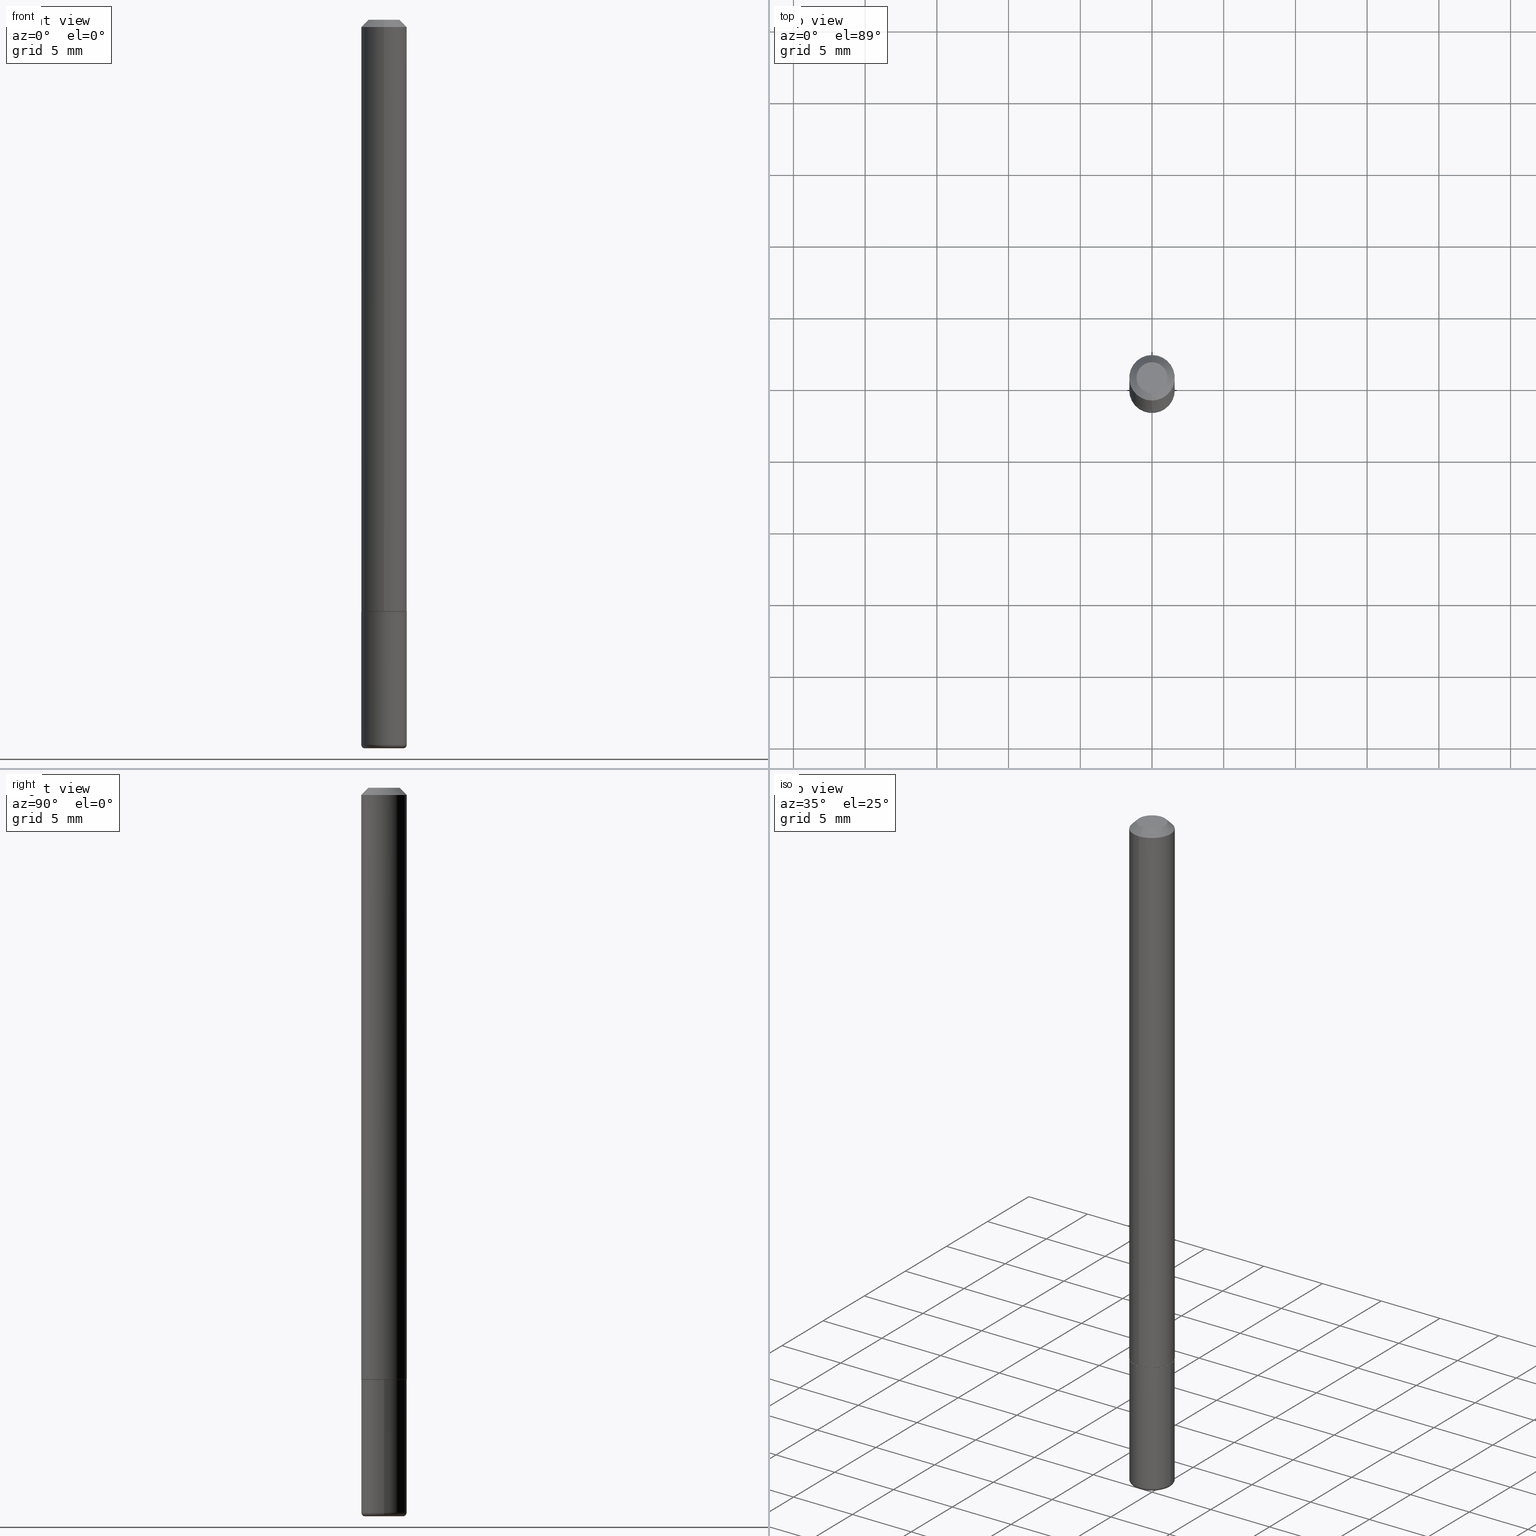
[diagram: canonical four-view strip — front | top / right | iso, engineering-drawing reading convention]
A machine part, canonical four-view strip (front | top / right | iso — engineering-drawing reading convention). The complete STEP part file that produces these views, byte-faithful:
ISO-10303-21;
HEADER;
FILE_DESCRIPTION (( 'STEP AP203' ),
    '1' );
FILE_NAME ('37987.STEP',
    '2024-03-02T10:37:51',
    ( '' ),
    ( '' ),
    'SwSTEP 2.0',
    'SolidWorks 2023',
    '' );
FILE_SCHEMA (( 'CONFIG_CONTROL_DESIGN' ));
ENDSEC;

DATA;
#1 = SECURITY_CLASSIFICATION ( '', '', #388 ) ;
#2 = DIRECTION ( 'NONE',  ( 2.455550444361550875E-29, -3.477043859163310348E-15, -1.000000000000000000 ) ) ;
#3 = VERTEX_POINT ( 'NONE', #5 ) ;
#4 = EDGE_CURVE ( 'NONE', #257, #189, #352, .T. ) ;
#5 = CARTESIAN_POINT ( 'NONE',  ( -3.601761448830047996E-16, -0.04249999999999988509, 2.538735833805575223E-16 ) ) ;
#6 = CARTESIAN_POINT ( 'NONE',  ( -4.364351673553526701E-16, -0.06250000000000577316, -1.623999999999999888 ) ) ;
#7 = EDGE_LOOP ( 'NONE', ( #129, #36, #215, #314 ) ) ;
#8 = ORIENTED_EDGE ( 'NONE', *, *, #83, .T. ) ;
#9 = DIRECTION ( 'NONE',  ( 1.000000000000000000, -6.982962677686261189E-15, 0.000000000000000000 ) ) ;
#10 = ORIENTED_EDGE ( 'NONE', *, *, #304, .T. ) ;
#11 = APPROVAL ( #185, 'UNSPECIFIED' ) ;
#12 = CARTESIAN_POINT ( 'NONE',  ( 4.866482924308422769E-29, -6.948047864297861094E-15, -1.990000000000000435 ) ) ;
#13 = DATE_TIME_ROLE ( 'classification_date' ) ;
#14 = CARTESIAN_POINT ( 'NONE',  ( 4.369837824925013962E-16, 0.06149999999999433697, -1.625000000000000666 ) ) ;
#15 = DIRECTION ( 'NONE',  ( 1.000000000000000000, -6.982962677686265133E-15, 0.000000000000000000 ) ) ;
#16 = AXIS2_PLACEMENT_3D ( 'NONE', #107, #331, #41 ) ;
#17 = ADVANCED_FACE ( 'NONE', ( #88 ), #62, .T. ) ;
#18 = APPROVAL_PERSON_ORGANIZATION ( #106, #131, #110 ) ;
#19 = PRODUCT_RELATED_PRODUCT_CATEGORY ( 'detail', '', ( #301 ) ) ;
#20 = DIRECTION ( 'NONE',  ( -2.445468806185136597E-29, 3.491481338843145583E-15, 1.000000000000000000 ) ) ;
#21 = COORDINATED_UNIVERSAL_TIME_OFFSET ( 5, 0, .BEHIND. ) ;
#22 = AXIS2_PLACEMENT_3D ( 'NONE', #176, #279, #282 ) ;
#23 = LOCAL_TIME ( 5, 37, 51.00000000000000000, #121 ) ;
#24 = DIRECTION ( 'NONE',  ( -2.455550444361550875E-29, 3.477043859163310348E-15, 1.000000000000000000 ) ) ;
#25 = PERSON_AND_ORGANIZATION ( #367, #398 ) ;
#26 = DIRECTION ( 'NONE',  ( -6.982962677686266711E-15, -1.000000000000000000, 3.477043859163311532E-15 ) ) ;
#27 = DATE_AND_TIME ( #340, #275 ) ;
#28 = DIRECTION ( 'NONE',  ( 2.438088387897960049E-29, -3.491481338843145188E-15, -1.000000000000000000 ) ) ;
#29 = EDGE_LOOP ( 'NONE', ( #255, #280, #92, #415 ) ) ;
#30 = CARTESIAN_POINT ( 'NONE',  ( -0.05250000000000001887, -6.575012928023808559E-15, -1.990000000000000435 ) ) ;
#31 = ORIENTED_EDGE ( 'NONE', *, *, #412, .F. ) ;
#32 = AXIS2_PLACEMENT_3D ( 'NONE', #75, #134, #111 ) ;
#33 = CARTESIAN_POINT ( 'NONE',  ( -0.06250000000000001388, -5.866763310108924432E-15, -1.625000000000000222 ) ) ;
#34 = ORIENTED_EDGE ( 'NONE', *, *, #144, .F. ) ;
#35 = FACE_OUTER_BOUND ( 'NONE', #98, .T. ) ;
#36 = ORIENTED_EDGE ( 'NONE', *, *, #364, .T. ) ;
#37 = APPROVAL ( #84, 'UNSPECIFIED' ) ;
#38 = DIRECTION ( 'NONE',  ( 1.000000000000000000, -6.982962677686266711E-15, 4.883557194083112901E-29 ) ) ;
#39 = CONICAL_SURFACE ( 'NONE', #269, 0.06250000000000001388, 0.7853981633974471688 ) ;
#40 = DIRECTION ( 'NONE',  ( 2.455550444361550875E-29, -3.477043859163310348E-15, -1.000000000000000000 ) ) ;
#41 = DIRECTION ( 'NONE',  ( 1.000000000000000000, -6.982962677686261189E-15, 0.000000000000000000 ) ) ;
#42 = ADVANCED_FACE ( 'NONE', ( #104 ), #371, .T. ) ;
#43 = ADVANCED_FACE ( 'NONE', ( #368 ), #76, .T. ) ;
#44 = AXIS2_PLACEMENT_3D ( 'NONE', #313, #28, #286 ) ;
#45 = ADVANCED_BREP_SHAPE_REPRESENTATION ( '37987', ( #372, #370, #374 ), #403 ) ;
#46 = CC_DESIGN_PERSON_AND_ORGANIZATION_ASSIGNMENT ( #312, #183, ( #240 ) ) ;
#47 = DIRECTION ( 'NONE',  ( -6.982962677686265922E-15, -1.000000000000000000, 3.483106191921934765E-15 ) ) ;
#48 =( LENGTH_UNIT ( ) NAMED_UNIT ( * ) SI_UNIT ( $, .METRE. ) );
#49 = CONICAL_SURFACE ( 'NONE', #284, 0.06149999999999998523, 0.7853981633974824739 ) ;
#50 = CARTESIAN_POINT ( 'NONE',  ( 0.000000000000000000, 0.000000000000000000, 0.000000000000000000 ) ) ;
#51 = CARTESIAN_POINT ( 'NONE',  ( 0.000000000000000000, 0.000000000000000000, 0.000000000000000000 ) ) ;
#52 = PERSON_AND_ORGANIZATION_ROLE ( 'design_owner' ) ;
#53 = DIRECTION ( 'NONE',  ( -6.982962677686266711E-15, -1.000000000000000000, 3.491481338843145583E-15 ) ) ;
#54 = CALENDAR_DATE ( 2024, 2, 3 ) ;
#55 = APPROVAL_PERSON_ORGANIZATION ( #57, #11, #409 ) ;
#56 = CARTESIAN_POINT ( 'NONE',  ( 0.06250000000000001388, -6.110092342975504671E-15, -1.625000000000000222 ) ) ;
#57 = PERSON_AND_ORGANIZATION ( #367, #398 ) ;
#58 = CYLINDRICAL_SURFACE ( 'NONE', #309, 0.06250000000000006939 ) ;
#59 = ORIENTED_EDGE ( 'NONE', *, *, #373, .F. ) ;
#60 = DIRECTION ( 'NONE',  ( -6.982962677686265922E-15, -1.000000000000000000, 4.442029257990672920E-15 ) ) ;
#61 = VERTEX_POINT ( 'NONE', #77 ) ;
#62 = CYLINDRICAL_SURFACE ( 'NONE', #126, 0.06250000000000001388 ) ;
#63 = AXIS2_PLACEMENT_3D ( 'NONE', #204, #335, #47 ) ;
#64 = LINE ( 'NONE', #69, #90 ) ;
#65 = EDGE_LOOP ( 'NONE', ( #283, #125, #193, #263 ) ) ;
#66 = AXIS2_PLACEMENT_3D ( 'NONE', #220, #288, #256 ) ;
#67 = CALENDAR_DATE ( 2024, 2, 3 ) ;
#68 = EDGE_CURVE ( 'NONE', #392, #189, #242, .T. ) ;
#69 = CARTESIAN_POINT ( 'NONE',  ( 0.06250000000000001388, -4.364351673553918173E-16, 3.047610484872460571E-30 ) ) ;
#70 = DIRECTION ( 'NONE',  ( -2.455550444361550875E-29, 3.477043859163310348E-15, 1.000000000000000000 ) ) ;
#71 = EDGE_CURVE ( 'NONE', #135, #102, #302, .T. ) ;
#72 = ORIENTED_EDGE ( 'NONE', *, *, #238, .F. ) ;
#73 = DIRECTION ( 'NONE',  ( -2.445468806185136597E-29, 3.491481338843145583E-15, 1.000000000000000000 ) ) ;
#74 = CC_DESIGN_APPROVAL ( #131, ( #1 ) ) ;
#75 = CARTESIAN_POINT ( 'NONE',  ( 3.990269472087521188E-29, -5.650196271140380549E-15, -1.625000000000000222 ) ) ;
#76 = PLANE ( 'NONE',  #137 ) ;
#77 = CARTESIAN_POINT ( 'NONE',  ( 0.06249999999999992367, -7.384483031653253552E-15, -1.990000000000000435 ) ) ;
#78 = APPROVAL_PERSON_ORGANIZATION ( #246, #37, #380 ) ;
#79 = EDGE_CURVE ( 'NONE', #135, #61, #404, .T. ) ;
#80 = VECTOR ( 'NONE', #120, 39.37007874015748143 ) ;
#81 = VECTOR ( 'NONE', #401, 39.37007874015748143 ) ;
#82 = CARTESIAN_POINT ( 'NONE',  ( -0.06250000000000001388, 4.440892098500627148E-16, -3.074334431409317165E-30 ) ) ;
#83 = EDGE_CURVE ( 'NONE', #226, #123, #297, .T. ) ;
#84 = APPROVAL_STATUS ( 'not_yet_approved' ) ;
#85 = DIRECTION ( 'NONE',  ( 1.000000000000000000, -6.982962677686273021E-15, 0.000000000000000000 ) ) ;
#86 = MECHANICAL_CONTEXT ( 'NONE', #96, 'mechanical' ) ;
#87 = CARTESIAN_POINT ( 'NONE',  ( -0.05250000000000001887, -6.556943197930020132E-15, -2.000000000000000000 ) ) ;
#88 = FACE_OUTER_BOUND ( 'NONE', #229, .T. ) ;
#89 = APPROVAL_DATE_TIME ( #27, #37 ) ;
#90 = VECTOR ( 'NONE', #165, 39.37007874015748143 ) ;
#91 = DIRECTION ( 'NONE',  ( 7.105427357601001859E-15, 1.000000000000000000, -3.491481338843145583E-15 ) ) ;
#92 = ORIENTED_EDGE ( 'NONE', *, *, #145, .F. ) ;
#93 = EDGE_CURVE ( 'NONE', #102, #221, #232, .T. ) ;
#94 = DIRECTION ( 'NONE',  ( -2.445468806185136597E-29, 3.491481338843145583E-15, 1.000000000000000000 ) ) ;
#95 = ORIENTED_EDGE ( 'NONE', *, *, #83, .F. ) ;
#96 = APPLICATION_CONTEXT ( 'configuration controlled 3d designs of mechanical parts and assemblies' ) ;
#97 = CARTESIAN_POINT ( 'NONE',  ( 4.911100888723118566E-31, -6.954087718326643672E-17, -0.02000000000000006981 ) ) ;
#98 = EDGE_LOOP ( 'NONE', ( #325, #418, #175, #386 ) ) ;
#99 = ADVANCED_FACE ( 'NONE', ( #207 ), #146, .T. ) ;
#100 = AXIS2_PLACEMENT_3D ( 'NONE', #378, #209, #60 ) ;
#101 = DIRECTION ( 'NONE',  ( -2.445468806185136597E-29, 3.491481338843145583E-15, 1.000000000000000000 ) ) ;
#102 = VERTEX_POINT ( 'NONE', #87 ) ;
#103 = CIRCLE ( 'NONE', #16, 0.06250000000000001388 ) ;
#104 = FACE_OUTER_BOUND ( 'NONE', #222, .T. ) ;
#105 = EDGE_CURVE ( 'NONE', #252, #257, #274, .T. ) ;
#106 = PERSON_AND_ORGANIZATION ( #367, #398 ) ;
#107 = CARTESIAN_POINT ( 'NONE',  ( 4.866482924308422769E-29, -6.948047864297861094E-15, -1.990000000000000435 ) ) ;
#108 = ORIENTED_EDGE ( 'NONE', *, *, #133, .F. ) ;
#109 = CARTESIAN_POINT ( 'NONE',  ( 4.364351673553922118E-16, 0.06249999999999995143, -0.02000000000000028491 ) ) ;
#110 = APPROVAL_ROLE ( '' ) ;
#111 = DIRECTION ( 'NONE',  ( -6.982962677686265922E-15, -1.000000000000000000, 4.442029257990672920E-15 ) ) ;
#112 = CIRCLE ( 'NONE', #32, 0.06149999999999998523 ) ;
#113 = ADVANCED_FACE ( 'NONE', ( #155 ), #214, .F. ) ;
#114 = AXIS2_PLACEMENT_3D ( 'NONE', #119, #151, #26 ) ;
#115 = FACE_OUTER_BOUND ( 'NONE', #29, .T. ) ;
#116 = ADVANCED_FACE ( 'NONE', ( #178 ), #411, .T. ) ;
#117 = AXIS2_PLACEMENT_3D ( 'NONE', #389, #94, #343 ) ;
#118 =( NAMED_UNIT ( * ) PLANE_ANGLE_UNIT ( ) SI_UNIT ( $, .RADIAN. ) );
#119 = CARTESIAN_POINT ( 'NONE',  ( -2.605319852608829948E-45, 3.689116391589790153E-31, 1.060992193661172718E-16 ) ) ;
#120 = DIRECTION ( 'NONE',  ( -2.455550444361550595E-29, 3.477043859163310348E-15, 1.000000000000000000 ) ) ;
#121 = COORDINATED_UNIVERSAL_TIME_OFFSET ( 5, 0, .BEHIND. ) ;
#122 = FACE_OUTER_BOUND ( 'NONE', #400, .T. ) ;
#123 = VERTEX_POINT ( 'NONE', #56 ) ;
#124 = LINE ( 'NONE', #82, #268 ) ;
#125 = ORIENTED_EDGE ( 'NONE', *, *, #241, .F. ) ;
#126 = AXIS2_PLACEMENT_3D ( 'NONE', #348, #356, #258 ) ;
#127 = AXIS2_PLACEMENT_3D ( 'NONE', #395, #101, #15 ) ;
#128 = DIRECTION ( 'NONE',  ( -2.445468806185136877E-29, 3.491481338843145188E-15, 1.000000000000000000 ) ) ;
#129 = ORIENTED_EDGE ( 'NONE', *, *, #219, .T. ) ;
#130 = DIRECTION ( 'NONE',  ( -6.982962677686265922E-15, -1.000000000000000000, 4.370956789862812472E-15 ) ) ;
#131 = APPROVAL ( #328, 'UNSPECIFIED' ) ;
#132 = ORIENTED_EDGE ( 'NONE', *, *, #4, .F. ) ;
#133 = EDGE_CURVE ( 'NONE', #221, #226, #124, .T. ) ;
#134 = DIRECTION ( 'NONE',  ( -2.455550444361550875E-29, 3.477043859163310348E-15, 1.000000000000000000 ) ) ;
#135 = VERTEX_POINT ( 'NONE', #184 ) ;
#136 = EDGE_CURVE ( 'NONE', #164, #257, #385, .T. ) ;
#137 = AXIS2_PLACEMENT_3D ( 'NONE', #203, #333, #143 ) ;
#138 = CARTESIAN_POINT ( 'NONE',  ( -2.605319852608829948E-45, 3.689116391589790153E-31, 1.060992193661172718E-16 ) ) ;
#139 = ORIENTED_EDGE ( 'NONE', *, *, #133, .T. ) ;
#140 = CARTESIAN_POINT ( 'NONE',  ( 4.440892098500834224E-16, 0.06249999999999447664, -1.624000000000000554 ) ) ;
#141 = APPLICATION_CONTEXT ( 'configuration controlled 3d designs of mechanical parts and assemblies' ) ;
#142 = VECTOR ( 'NONE', #326, 39.37007874015748854 ) ;
#143 = DIRECTION ( 'NONE',  ( -1.000000000000000000, 6.982962677686265922E-15, -4.876176775795935793E-29 ) ) ;
#144 = EDGE_CURVE ( 'NONE', #3, #332, #180, .T. ) ;
#145 = EDGE_CURVE ( 'NONE', #61, #221, #344, .T. ) ;
#146 = CONICAL_SURFACE ( 'NONE', #100, 0.06149999999999998523, 0.7853981633974824739 ) ;
#147 = CC_DESIGN_APPROVAL ( #37, ( #271 ) ) ;
#148 = PERSON_AND_ORGANIZATION_ROLE ( 'classification_officer' ) ;
#149 = ADVANCED_FACE ( 'NONE', ( #122 ), #58, .T. ) ;
#150 = CARTESIAN_POINT ( 'NONE',  ( 0.000000000000000000, 0.000000000000000000, 0.000000000000000000 ) ) ;
#151 = DIRECTION ( 'NONE',  ( -2.455550444361550875E-29, 3.477043859163310348E-15, 1.000000000000000000 ) ) ;
#152 = TOROIDAL_SURFACE ( 'NONE', #365, 0.05250000000000001887, 0.009999999999999807654 ) ;
#153 = UNCERTAINTY_MEASURE_WITH_UNIT (LENGTH_MEASURE( 1.000000000000000082E-05 ), #345, 'distance_accuracy_value', 'NONE');
#154 = PLANE ( 'NONE',  #357 ) ;
#155 = FACE_OUTER_BOUND ( 'NONE', #390, .T. ) ;
#156 = ORIENTED_EDGE ( 'NONE', *, *, #337, .T. ) ;
#157 = DATE_AND_TIME ( #54, #23 ) ;
#158 = CARTESIAN_POINT ( 'NONE',  ( 0.000000000000000000, 0.000000000000000000, 0.000000000000000000 ) ) ;
#159 = ORIENTED_EDGE ( 'NONE', *, *, #208, .T. ) ;
#160 = AXIS2_PLACEMENT_3D ( 'NONE', #150, #406, #237 ) ;
#161 = PLANE ( 'NONE',  #44 ) ;
#162 = ORIENTED_EDGE ( 'NONE', *, *, #238, .T. ) ;
#163 = DIRECTION ( 'NONE',  ( 1.000000000000000000, -6.982962677686266711E-15, 4.883557194083112901E-29 ) ) ;
#164 = VERTEX_POINT ( 'NONE', #186 ) ;
#165 = DIRECTION ( 'NONE',  ( -2.445468806185136877E-29, 3.491481338843145188E-15, 1.000000000000000000 ) ) ;
#166 = ORIENTED_EDGE ( 'NONE', *, *, #304, .F. ) ;
#167 = ORIENTED_EDGE ( 'NONE', *, *, #330, .T. ) ;
#168 = CARTESIAN_POINT ( 'NONE',  ( 3.666055405785288149E-16, 0.04249999999999988509, -4.167514464832303416E-17 ) ) ;
#169 = CIRCLE ( 'NONE', #405, 0.06149999999999998523 ) ;
#170 = ADVANCED_FACE ( 'NONE', ( #251 ), #154, .F. ) ;
#171 = DIRECTION ( 'NONE',  ( 6.982962677686265922E-15, 1.000000000000000000, -3.483106191921934765E-15 ) ) ;
#172 = DIRECTION ( 'NONE',  ( 6.982962677686265922E-15, 1.000000000000000000, -3.483106191921934765E-15 ) ) ;
#173 = ORIENTED_EDGE ( 'NONE', *, *, #394, .F. ) ;
#174 = AXIS2_PLACEMENT_3D ( 'NONE', #273, #20, #341 ) ;
#175 = ORIENTED_EDGE ( 'NONE', *, *, #79, .T. ) ;
#176 = CARTESIAN_POINT ( 'NONE',  ( 3.987813921643159440E-29, -5.646719227281216646E-15, -1.624000000000000110 ) ) ;
#177 = DIRECTION ( 'NONE',  ( 1.000000000000000000, 0.000000000000000000, 0.000000000000000000 ) ) ;
#178 = FACE_OUTER_BOUND ( 'NONE', #339, .T. ) ;
#179 = ADVANCED_FACE ( 'NONE', ( #350 ), #161, .F. ) ;
#180 = CIRCLE ( 'NONE', #114, 0.04249999999999988509 ) ;
#181 = CIRCLE ( 'NONE', #127, 0.05250000000000001887 ) ;
#182 = ORIENTED_EDGE ( 'NONE', *, *, #145, .T. ) ;
#183 = PERSON_AND_ORGANIZATION_ROLE ( 'creator' ) ;
#184 = CARTESIAN_POINT ( 'NONE',  ( 0.05250000000000001887, -7.349568218264820325E-15, -2.000000000000000000 ) ) ;
#185 = APPROVAL_STATUS ( 'not_yet_approved' ) ;
#186 = CARTESIAN_POINT ( 'NONE',  ( -4.294522046776653739E-16, -0.06150000000000564043, -1.625000000000000000 ) ) ;
#187 = ORIENTED_EDGE ( 'NONE', *, *, #4, .T. ) ;
#188 = CARTESIAN_POINT ( 'NONE',  ( -4.294522046776653739E-16, -0.06150000000000564043, -1.625000000000000000 ) ) ;
#189 = VERTEX_POINT ( 'NONE', #381 ) ;
#190 = ADVANCED_FACE ( 'NONE', ( #115 ), #336, .T. ) ;
#191 = AXIS2_PLACEMENT_3D ( 'NONE', #217, #210, #316 ) ;
#192 = DIRECTION ( 'NONE',  ( -2.445468806185136597E-29, 3.491481338843145583E-15, 1.000000000000000000 ) ) ;
#193 = ORIENTED_EDGE ( 'NONE', *, *, #373, .T. ) ;
#194 = CARTESIAN_POINT ( 'NONE',  ( 3.990269472087521188E-29, -5.650196271140380549E-15, -1.625000000000000222 ) ) ;
#195 = ORIENTED_EDGE ( 'NONE', *, *, #364, .F. ) ;
#196 = DATE_AND_TIME ( #260, #249 ) ;
#197 = LINE ( 'NONE', #14, #142 ) ;
#198 = FACE_OUTER_BOUND ( 'NONE', #7, .T. ) ;
#199 = LOCAL_TIME ( 5, 37, 51.00000000000000000, #231 ) ;
#200 = DIRECTION ( 'NONE',  ( -6.982962677686266711E-15, -1.000000000000000000, 3.477043859163311532E-15 ) ) ;
#201 = CC_DESIGN_DATE_AND_TIME_ASSIGNMENT ( #358, #13, ( #1 ) ) ;
#202 = EDGE_LOOP ( 'NONE', ( #347, #396 ) ) ;
#203 = CARTESIAN_POINT ( 'NONE',  ( 4.890937612370273194E-29, -6.982962677686291165E-15, -2.000000000000000000 ) ) ;
#204 = CARTESIAN_POINT ( 'NONE',  ( 4.911100888723118566E-31, -6.954087718326643672E-17, -0.02000000000000006981 ) ) ;
#205 = LOCAL_TIME ( 5, 37, 51.00000000000000000, #21 ) ;
#206 = AXIS2_PLACEMENT_3D ( 'NONE', #97, #40, #171 ) ;
#207 = FACE_OUTER_BOUND ( 'NONE', #254, .T. ) ;
#208 = EDGE_CURVE ( 'NONE', #123, #226, #212, .T. ) ;
#209 = DIRECTION ( 'NONE',  ( -2.455550444361550875E-29, 3.477043859163310348E-15, 1.000000000000000000 ) ) ;
#210 = DIRECTION ( 'NONE',  ( -2.445468806185136597E-29, 3.491481338843145583E-15, 1.000000000000000000 ) ) ;
#211 = AXIS2_PLACEMENT_3D ( 'NONE', #417, #247, #338 ) ;
#212 = CIRCLE ( 'NONE', #298, 0.06250000000000001388 ) ;
#213 = CALENDAR_DATE ( 2024, 2, 3 ) ;
#214 = PLANE ( 'NONE',  #211 ) ;
#215 = ORIENTED_EDGE ( 'NONE', *, *, #369, .F. ) ;
#216 = APPLICATION_PROTOCOL_DEFINITION ( 'international standard', 'config_control_design', 1994, #141 ) ;
#217 = CARTESIAN_POINT ( 'NONE',  ( 4.866482924308422769E-29, -6.948047864297861094E-15, -1.990000000000000435 ) ) ;
#218 = EDGE_LOOP ( 'NONE', ( #159, #8 ) ) ;
#219 = EDGE_CURVE ( 'NONE', #164, #324, #112, .T. ) ;
#220 = CARTESIAN_POINT ( 'NONE',  ( 4.911100888723118566E-31, -6.954087718326643672E-17, -0.02000000000000006981 ) ) ;
#221 = VERTEX_POINT ( 'NONE', #359 ) ;
#222 = EDGE_LOOP ( 'NONE', ( #287, #156, #173, #132 ) ) ;
#223 = AXIS2_PLACEMENT_3D ( 'NONE', #379, #53, #85 ) ;
#224 = DIRECTION ( 'NONE',  ( -2.455550444361550875E-29, 3.477043859163310348E-15, 1.000000000000000000 ) ) ;
#225 = ORIENTED_EDGE ( 'NONE', *, *, #105, .F. ) ;
#226 = VERTEX_POINT ( 'NONE', #33 ) ;
#227 = CC_DESIGN_DATE_AND_TIME_ASSIGNMENT ( #276, #342, ( #271 ) ) ;
#228 = LINE ( 'NONE', #109, #243 ) ;
#229 = EDGE_LOOP ( 'NONE', ( #108, #167, #10, #95 ) ) ;
#230 = DIRECTION ( 'NONE',  ( 4.937700262164541731E-15, 0.7071067811865442421, -0.7071067811865507924 ) ) ;
#231 = COORDINATED_UNIVERSAL_TIME_OFFSET ( 5, 0, .BEHIND. ) ;
#232 = CIRCLE ( 'NONE', #292, 0.009999999999999807654 ) ;
#233 = DIRECTION ( 'NONE',  ( -2.445468806185136597E-29, 3.491481338843145583E-15, 1.000000000000000000 ) ) ;
#234 = CC_DESIGN_SECURITY_CLASSIFICATION ( #1, ( #240 ) ) ;
#235 = CC_DESIGN_PERSON_AND_ORGANIZATION_ASSIGNMENT ( #25, #148, ( #1 ) ) ;
#236 = DIMENSIONAL_EXPONENTS ( 1.000000000000000000, 0.000000000000000000, 0.000000000000000000, 0.000000000000000000, 0.000000000000000000, 0.000000000000000000, 0.000000000000000000 ) ;
#237 = DIRECTION ( 'NONE',  ( -6.982962677686265922E-15, -1.000000000000000000, 3.477043859163310348E-15 ) ) ;
#238 = EDGE_CURVE ( 'NONE', #324, #164, #169, .T. ) ;
#239 = CC_DESIGN_PERSON_AND_ORGANIZATION_ASSIGNMENT ( #281, #310, ( #240 ) ) ;
#240 = PRODUCT_DEFINITION_FORMATION_WITH_SPECIFIED_SOURCE ( 'ANY', '', #301, .NOT_KNOWN. ) ;
#241 = EDGE_CURVE ( 'NONE', #332, #3, #285, .T. ) ;
#242 = CIRCLE ( 'NONE', #63, 0.06250000000000001388 ) ;
#243 = VECTOR ( 'NONE', #230, 39.37007874015748143 ) ;
#244 = CARTESIAN_POINT ( 'NONE',  ( 2.967759138016655168E-16, 0.04249999999999988509, -9.472475433138164541E-17 ) ) ;
#245 = DIRECTION ( 'NONE',  ( 6.982962677686265922E-15, 1.000000000000000000, -3.477043859163310348E-15 ) ) ;
#246 = PERSON_AND_ORGANIZATION ( #367, #398 ) ;
#247 = DIRECTION ( 'NONE',  ( -2.455550444361550595E-29, 3.477043859163310348E-15, 1.000000000000000000 ) ) ;
#248 = EDGE_LOOP ( 'NONE', ( #34, #360, #291, #59 ) ) ;
#249 = LOCAL_TIME ( 5, 37, 51.00000000000000000, #321 ) ;
#250 = APPROVAL_DATE_TIME ( #157, #11 ) ;
#251 = FACE_OUTER_BOUND ( 'NONE', #202, .T. ) ;
#252 = VERTEX_POINT ( 'NONE', #140 ) ;
#253 = DIRECTION ( 'NONE',  ( -2.455550444361550875E-29, 3.477043859163310348E-15, 1.000000000000000000 ) ) ;
#254 = EDGE_LOOP ( 'NONE', ( #195, #162, #355, #225 ) ) ;
#255 = ORIENTED_EDGE ( 'NONE', *, *, #71, .T. ) ;
#256 = DIRECTION ( 'NONE',  ( -6.982962677686265922E-15, -1.000000000000000000, 3.483106191921934765E-15 ) ) ;
#257 = VERTEX_POINT ( 'NONE', #6 ) ;
#258 = DIRECTION ( 'NONE',  ( 1.000000000000000000, -6.982962677686267499E-15, 4.876176775795935793E-29 ) ) ;
#259 = VECTOR ( 'NONE', #346, 39.37007874015748854 ) ;
#260 = CALENDAR_DATE ( 2024, 2, 3 ) ;
#261 = VECTOR ( 'NONE', #402, 39.37007874015748143 ) ;
#262 = FACE_OUTER_BOUND ( 'NONE', #248, .T. ) ;
#263 = ORIENTED_EDGE ( 'NONE', *, *, #68, .T. ) ;
#264 = LINE ( 'NONE', #295, #81 ) ;
#265 = CARTESIAN_POINT ( 'NONE',  ( -4.287811248607203282E-16, -0.06250000000000008327, -0.01999999999999985123 ) ) ;
#266 = AXIS2_PLACEMENT_3D ( 'NONE', #12, #233, #38 ) ;
#267 = ADVANCED_FACE ( 'NONE', ( #262 ), #39, .T. ) ;
#268 = VECTOR ( 'NONE', #128, 39.37007874015748143 ) ;
#269 = AXIS2_PLACEMENT_3D ( 'NONE', #399, #2, #172 ) ;
#270 = PRODUCT_DEFINITION_SHAPE ( 'NONE', 'NONE',  #271 ) ;
#271 = PRODUCT_DEFINITION ( 'UNKNOWN', '', #240, #410 ) ;
#272 = APPLICATION_PROTOCOL_DEFINITION ( 'international standard', 'config_control_design', 1994, #96 ) ;
#273 = CARTESIAN_POINT ( 'NONE',  ( 4.890937612370273194E-29, -6.982962677686291165E-15, -2.000000000000000000 ) ) ;
#274 = CIRCLE ( 'NONE', #22, 0.06250000000000012490 ) ;
#275 = LOCAL_TIME ( 5, 37, 51.00000000000000000, #384 ) ;
#276 = DATE_AND_TIME ( #213, #205 ) ;
#277 = DIRECTION ( 'NONE',  ( 2.455550444361550595E-29, -3.477043859163310348E-15, -1.000000000000000000 ) ) ;
#278 = DIRECTION ( 'NONE',  ( 0.000000000000000000, 0.000000000000000000, 1.000000000000000000 ) ) ;
#279 = DIRECTION ( 'NONE',  ( -2.455550444361550875E-29, 3.477043859163310348E-15, 1.000000000000000000 ) ) ;
#280 = ORIENTED_EDGE ( 'NONE', *, *, #93, .T. ) ;
#281 = PERSON_AND_ORGANIZATION ( #367, #398 ) ;
#282 = DIRECTION ( 'NONE',  ( -6.982962677686265922E-15, -1.000000000000000000, 4.370956789862812472E-15 ) ) ;
#283 = ORIENTED_EDGE ( 'NONE', *, *, #323, .F. ) ;
#284 = AXIS2_PLACEMENT_3D ( 'NONE', #290, #253, #361 ) ;
#285 = CIRCLE ( 'NONE', #318, 0.04249999999999988509 ) ;
#286 = DIRECTION ( 'NONE',  ( -1.000000000000000000, 6.982962677686265922E-15, -4.876176775795935793E-29 ) ) ;
#287 = ORIENTED_EDGE ( 'NONE', *, *, #369, .T. ) ;
#288 = DIRECTION ( 'NONE',  ( -2.455550444361550875E-29, 3.477043859163310348E-15, 1.000000000000000000 ) ) ;
#289 = ORIENTED_EDGE ( 'NONE', *, *, #208, .F. ) ;
#290 = CARTESIAN_POINT ( 'NONE',  ( 3.990269472087521188E-29, -5.650196271140380549E-15, -1.625000000000000222 ) ) ;
#291 = ORIENTED_EDGE ( 'NONE', *, *, #394, .T. ) ;
#292 = AXIS2_PLACEMENT_3D ( 'NONE', #30, #91, #307 ) ;
#293 = APPROVAL_DATE_TIME ( #196, #131 ) ;
#294 = AXIS2_PLACEMENT_3D ( 'NONE', #319, #224, #130 ) ;
#295 = CARTESIAN_POINT ( 'NONE',  ( 4.440892098500630106E-16, 0.06250000000000006939, -2.173152411977071433E-16 ) ) ;
#296 = CARTESIAN_POINT ( 'NONE',  ( 4.364351673553922118E-16, 0.06249999999999995143, -0.02000000000000028491 ) ) ;
#297 = CIRCLE ( 'NONE', #117, 0.06250000000000001388 ) ;
#298 = AXIS2_PLACEMENT_3D ( 'NONE', #305, #73, #9 ) ;
#299 = ORIENTED_EDGE ( 'NONE', *, *, #337, .F. ) ;
#300 = CC_DESIGN_PERSON_AND_ORGANIZATION_ASSIGNMENT ( #306, #349, ( #271 ) ) ;
#301 = PRODUCT ( '37987', '37987', '', ( #86 ) ) ;
#302 = CIRCLE ( 'NONE', #174, 0.05250000000000001887 ) ;
#303 = CIRCLE ( 'NONE', #66, 0.06250000000000001388 ) ;
#304 = EDGE_CURVE ( 'NONE', #61, #123, #64, .T. ) ;
#305 = CARTESIAN_POINT ( 'NONE',  ( 3.973886810050848091E-29, -5.673657175620113002E-15, -1.625000000000000222 ) ) ;
#306 = PERSON_AND_ORGANIZATION ( #367, #398 ) ;
#307 = DIRECTION ( 'NONE',  ( -1.000000000000000000, 7.105427357600966360E-15, 0.000000000000000000 ) ) ;
#308 = AXIS2_PLACEMENT_3D ( 'NONE', #158, #311, #414 ) ;
#309 = AXIS2_PLACEMENT_3D ( 'NONE', #51, #24, #408 ) ;
#310 = PERSON_AND_ORGANIZATION_ROLE ( 'design_supplier' ) ;
#311 = DIRECTION ( 'NONE',  ( -2.445468806185136597E-29, 3.491481338843145583E-15, 1.000000000000000000 ) ) ;
#312 = PERSON_AND_ORGANIZATION ( #367, #398 ) ;
#313 = CARTESIAN_POINT ( 'NONE',  ( 3.973886810050848091E-29, -5.673657175620113002E-15, -1.625000000000000222 ) ) ;
#314 = ORIENTED_EDGE ( 'NONE', *, *, #136, .F. ) ;
#315 = SHAPE_DEFINITION_REPRESENTATION ( #270, #45 ) ;
#316 = DIRECTION ( 'NONE',  ( 1.000000000000000000, -6.982962677686261189E-15, 0.000000000000000000 ) ) ;
#317 = ORIENTED_EDGE ( 'NONE', *, *, #105, .T. ) ;
#318 = AXIS2_PLACEMENT_3D ( 'NONE', #138, #366, #200 ) ;
#319 = CARTESIAN_POINT ( 'NONE',  ( 3.987813921643159440E-29, -5.646719227281216646E-15, -1.624000000000000110 ) ) ;
#320 = ORIENTED_EDGE ( 'NONE', *, *, #219, .F. ) ;
#321 = COORDINATED_UNIVERSAL_TIME_OFFSET ( 5, 0, .BEHIND. ) ;
#322 = CARTESIAN_POINT ( 'NONE',  ( 4.405364961713022947E-16, 0.06149999999999433697, -1.625000000000000666 ) ) ;
#323 = EDGE_CURVE ( 'NONE', #3, #189, #391, .T. ) ;
#324 = VERTEX_POINT ( 'NONE', #322 ) ;
#325 = ORIENTED_EDGE ( 'NONE', *, *, #93, .F. ) ;
#326 = DIRECTION ( 'NONE',  ( 5.024295867788231995E-15, 0.7071067811865739960, 0.7071067811865208164 ) ) ;
#327 = CLOSED_SHELL ( 'NONE', ( #375, #42, #267, #383, #149, #99, #113, #170 ) ) ;
#328 = APPROVAL_STATUS ( 'not_yet_approved' ) ;
#329 = FACE_OUTER_BOUND ( 'NONE', #65, .T. ) ;
#330 = EDGE_CURVE ( 'NONE', #221, #61, #103, .T. ) ;
#331 = DIRECTION ( 'NONE',  ( -2.445468806185136597E-29, 3.491481338843145583E-15, 1.000000000000000000 ) ) ;
#332 = VERTEX_POINT ( 'NONE', #168 ) ;
#333 = DIRECTION ( 'NONE',  ( 2.438088387897960049E-29, -3.491481338843145188E-15, -1.000000000000000000 ) ) ;
#334 = CONICAL_SURFACE ( 'NONE', #206, 0.06250000000000001388, 0.7853981633974471688 ) ;
#335 = DIRECTION ( 'NONE',  ( -2.455550444361550875E-29, 3.477043859163310348E-15, 1.000000000000000000 ) ) ;
#336 = TOROIDAL_SURFACE ( 'NONE', #266, 0.05250000000000001887, 0.009999999999999807654 ) ;
#337 = EDGE_CURVE ( 'NONE', #252, #392, #264, .T. ) ;
#338 = DIRECTION ( 'NONE',  ( -6.982962677686265922E-15, -1.000000000000000000, 3.477043859163310348E-15 ) ) ;
#339 = EDGE_LOOP ( 'NONE', ( #182, #139, #289, #166 ) ) ;
#340 = CALENDAR_DATE ( 2024, 2, 3 ) ;
#341 = DIRECTION ( 'NONE',  ( 1.000000000000000000, -6.982962677686265133E-15, 0.000000000000000000 ) ) ;
#342 = DATE_TIME_ROLE ( 'creation_date' ) ;
#343 = DIRECTION ( 'NONE',  ( 1.000000000000000000, -6.982962677686261189E-15, 0.000000000000000000 ) ) ;
#344 = CIRCLE ( 'NONE', #191, 0.06250000000000001388 ) ;
#345 =( CONVERSION_BASED_UNIT ( 'INCH', #407 ) LENGTH_UNIT ( ) NAMED_UNIT ( #236 ) );
#346 = DIRECTION ( 'NONE',  ( -4.937700262164715281E-15, -0.7071067811865691111, 0.7071067811865257013 ) ) ;
#347 = ORIENTED_EDGE ( 'NONE', *, *, #241, .T. ) ;
#348 = CARTESIAN_POINT ( 'NONE',  ( 0.000000000000000000, 0.000000000000000000, 0.000000000000000000 ) ) ;
#349 = PERSON_AND_ORGANIZATION_ROLE ( 'creator' ) ;
#350 = FACE_OUTER_BOUND ( 'NONE', #218, .T. ) ;
#351 = ORIENTED_EDGE ( 'NONE', *, *, #71, .F. ) ;
#352 = LINE ( 'NONE', #382, #80 ) ;
#353 = CC_DESIGN_PERSON_AND_ORGANIZATION_ASSIGNMENT ( #416, #52, ( #301 ) ) ;
#354 = CARTESIAN_POINT ( 'NONE',  ( 4.866482924308422769E-29, -6.948047864297861094E-15, -1.990000000000000435 ) ) ;
#355 = ORIENTED_EDGE ( 'NONE', *, *, #136, .T. ) ;
#356 = DIRECTION ( 'NONE',  ( -2.445468806185136597E-29, 3.491481338843145583E-15, 1.000000000000000000 ) ) ;
#357 = AXIS2_PLACEMENT_3D ( 'NONE', #244, #277, #245 ) ;
#358 = DATE_AND_TIME ( #67, #199 ) ;
#359 = CARTESIAN_POINT ( 'NONE',  ( -0.06249999999999992367, -6.503958654447799267E-15, -1.990000000000000435 ) ) ;
#360 = ORIENTED_EDGE ( 'NONE', *, *, #323, .T. ) ;
#361 = DIRECTION ( 'NONE',  ( -6.982962677686265922E-15, -1.000000000000000000, 4.442029257990672920E-15 ) ) ;
#362 = EDGE_LOOP ( 'NONE', ( #351, #31 ) ) ;
#363 = DIRECTION ( 'NONE',  ( -6.982962677686265922E-15, -1.000000000000000000, 4.442029257990672920E-15 ) ) ;
#364 = EDGE_CURVE ( 'NONE', #324, #252, #197, .T. ) ;
#365 = AXIS2_PLACEMENT_3D ( 'NONE', #354, #192, #163 ) ;
#366 = DIRECTION ( 'NONE',  ( -2.455550444361550875E-29, 3.477043859163310348E-15, 1.000000000000000000 ) ) ;
#367 = PERSON ( 'UNSPECIFIED', 'UNSPECIFIED', 'UNSPECIFIED', ('UNSPECIFIED'), ('UNSPECIFIED'), ('UNSPECIFIED') ) ;
#368 = FACE_OUTER_BOUND ( 'NONE', #362, .T. ) ;
#369 = EDGE_CURVE ( 'NONE', #257, #252, #377, .T. ) ;
#370 = MANIFOLD_SOLID_BREP ( 'Body-Move/Copy2[2]', #327 ) ;
#371 = CYLINDRICAL_SURFACE ( 'NONE', #160, 0.06250000000000006939 ) ;
#372 = MANIFOLD_SOLID_BREP ( 'Body-Move/Copy2[1]', #397 ) ;
#373 = EDGE_CURVE ( 'NONE', #332, #392, #228, .T. ) ;
#374 = AXIS2_PLACEMENT_3D ( 'NONE', #50, #278, #177 ) ;
#375 = ADVANCED_FACE ( 'NONE', ( #198 ), #49, .T. ) ;
#376 = ORIENTED_EDGE ( 'NONE', *, *, #68, .F. ) ;
#377 = CIRCLE ( 'NONE', #294, 0.06250000000000012490 ) ;
#378 = CARTESIAN_POINT ( 'NONE',  ( 3.990269472087521188E-29, -5.650196271140380549E-15, -1.625000000000000222 ) ) ;
#379 = CARTESIAN_POINT ( 'NONE',  ( 0.05250000000000001887, -7.314653404876390254E-15, -1.990000000000000435 ) ) ;
#380 = APPROVAL_ROLE ( '' ) ;
#381 = CARTESIAN_POINT ( 'NONE',  ( -4.287811248607203282E-16, -0.06250000000000008327, -0.01999999999999985123 ) ) ;
#382 = CARTESIAN_POINT ( 'NONE',  ( -4.364351673553921131E-16, -0.06250000000000006939, 2.173152411977071433E-16 ) ) ;
#383 = ADVANCED_FACE ( 'NONE', ( #329 ), #334, .T. ) ;
#384 = COORDINATED_UNIVERSAL_TIME_OFFSET ( 5, 0, .BEHIND. ) ;
#385 = LINE ( 'NONE', #188, #259 ) ;
#386 = ORIENTED_EDGE ( 'NONE', *, *, #330, .F. ) ;
#387 = CC_DESIGN_APPROVAL ( #11, ( #240 ) ) ;
#388 = SECURITY_CLASSIFICATION_LEVEL ( 'unclassified' ) ;
#389 = CARTESIAN_POINT ( 'NONE',  ( 3.973886810050848091E-29, -5.673657175620113002E-15, -1.625000000000000222 ) ) ;
#390 = EDGE_LOOP ( 'NONE', ( #320, #72 ) ) ;
#391 = LINE ( 'NONE', #265, #261 ) ;
#392 = VERTEX_POINT ( 'NONE', #296 ) ;
#393 = ADVANCED_FACE ( 'NONE', ( #35 ), #152, .T. ) ;
#394 = EDGE_CURVE ( 'NONE', #189, #392, #303, .T. ) ;
#395 = CARTESIAN_POINT ( 'NONE',  ( 4.890937612370273194E-29, -6.982962677686291165E-15, -2.000000000000000000 ) ) ;
#396 = ORIENTED_EDGE ( 'NONE', *, *, #144, .T. ) ;
#397 = CLOSED_SHELL ( 'NONE', ( #116, #190, #179, #17, #393, #43 ) ) ;
#398 = ORGANIZATION ( 'UNSPECIFIED', 'UNSPECIFIED', '' ) ;
#399 = CARTESIAN_POINT ( 'NONE',  ( 4.911100888723118566E-31, -6.954087718326643672E-17, -0.02000000000000006981 ) ) ;
#400 = EDGE_LOOP ( 'NONE', ( #299, #317, #187, #376 ) ) ;
#401 = DIRECTION ( 'NONE',  ( -2.455550444361550595E-29, 3.477043859163310348E-15, 1.000000000000000000 ) ) ;
#402 = DIRECTION ( 'NONE',  ( -4.851104656540957964E-15, -0.7071067811865491270, -0.7071067811865459074 ) ) ;
#403 =( GEOMETRIC_REPRESENTATION_CONTEXT ( 3 ) GLOBAL_UNCERTAINTY_ASSIGNED_CONTEXT ( ( #153 ) ) GLOBAL_UNIT_ASSIGNED_CONTEXT ( ( #345, #118, #413 ) ) REPRESENTATION_CONTEXT ( 'NONE', 'WORKASPACE' ) );
#404 = CIRCLE ( 'NONE', #223, 0.009999999999999807654 ) ;
#405 = AXIS2_PLACEMENT_3D ( 'NONE', #194, #70, #363 ) ;
#406 = DIRECTION ( 'NONE',  ( -2.455550444361550875E-29, 3.477043859163310348E-15, 1.000000000000000000 ) ) ;
#407 = LENGTH_MEASURE_WITH_UNIT ( LENGTH_MEASURE( 0.02539999999999999897 ), #48 );
#408 = DIRECTION ( 'NONE',  ( -6.982962677686265922E-15, -1.000000000000000000, 3.477043859163310348E-15 ) ) ;
#409 = APPROVAL_ROLE ( '' ) ;
#410 = DESIGN_CONTEXT ( 'detailed design', #141, 'design' ) ;
#411 = CYLINDRICAL_SURFACE ( 'NONE', #308, 0.06250000000000001388 ) ;
#412 = EDGE_CURVE ( 'NONE', #102, #135, #181, .T. ) ;
#413 =( NAMED_UNIT ( * ) SI_UNIT ( $, .STERADIAN. ) SOLID_ANGLE_UNIT ( ) );
#414 = DIRECTION ( 'NONE',  ( 1.000000000000000000, -6.982962677686267499E-15, 4.876176775795935793E-29 ) ) ;
#415 = ORIENTED_EDGE ( 'NONE', *, *, #79, .F. ) ;
#416 = PERSON_AND_ORGANIZATION ( #367, #398 ) ;
#417 = CARTESIAN_POINT ( 'NONE',  ( 3.990269472087521188E-29, -5.650196271140380549E-15, -1.625000000000000222 ) ) ;
#418 = ORIENTED_EDGE ( 'NONE', *, *, #412, .T. ) ;
ENDSEC;
END-ISO-10303-21;
